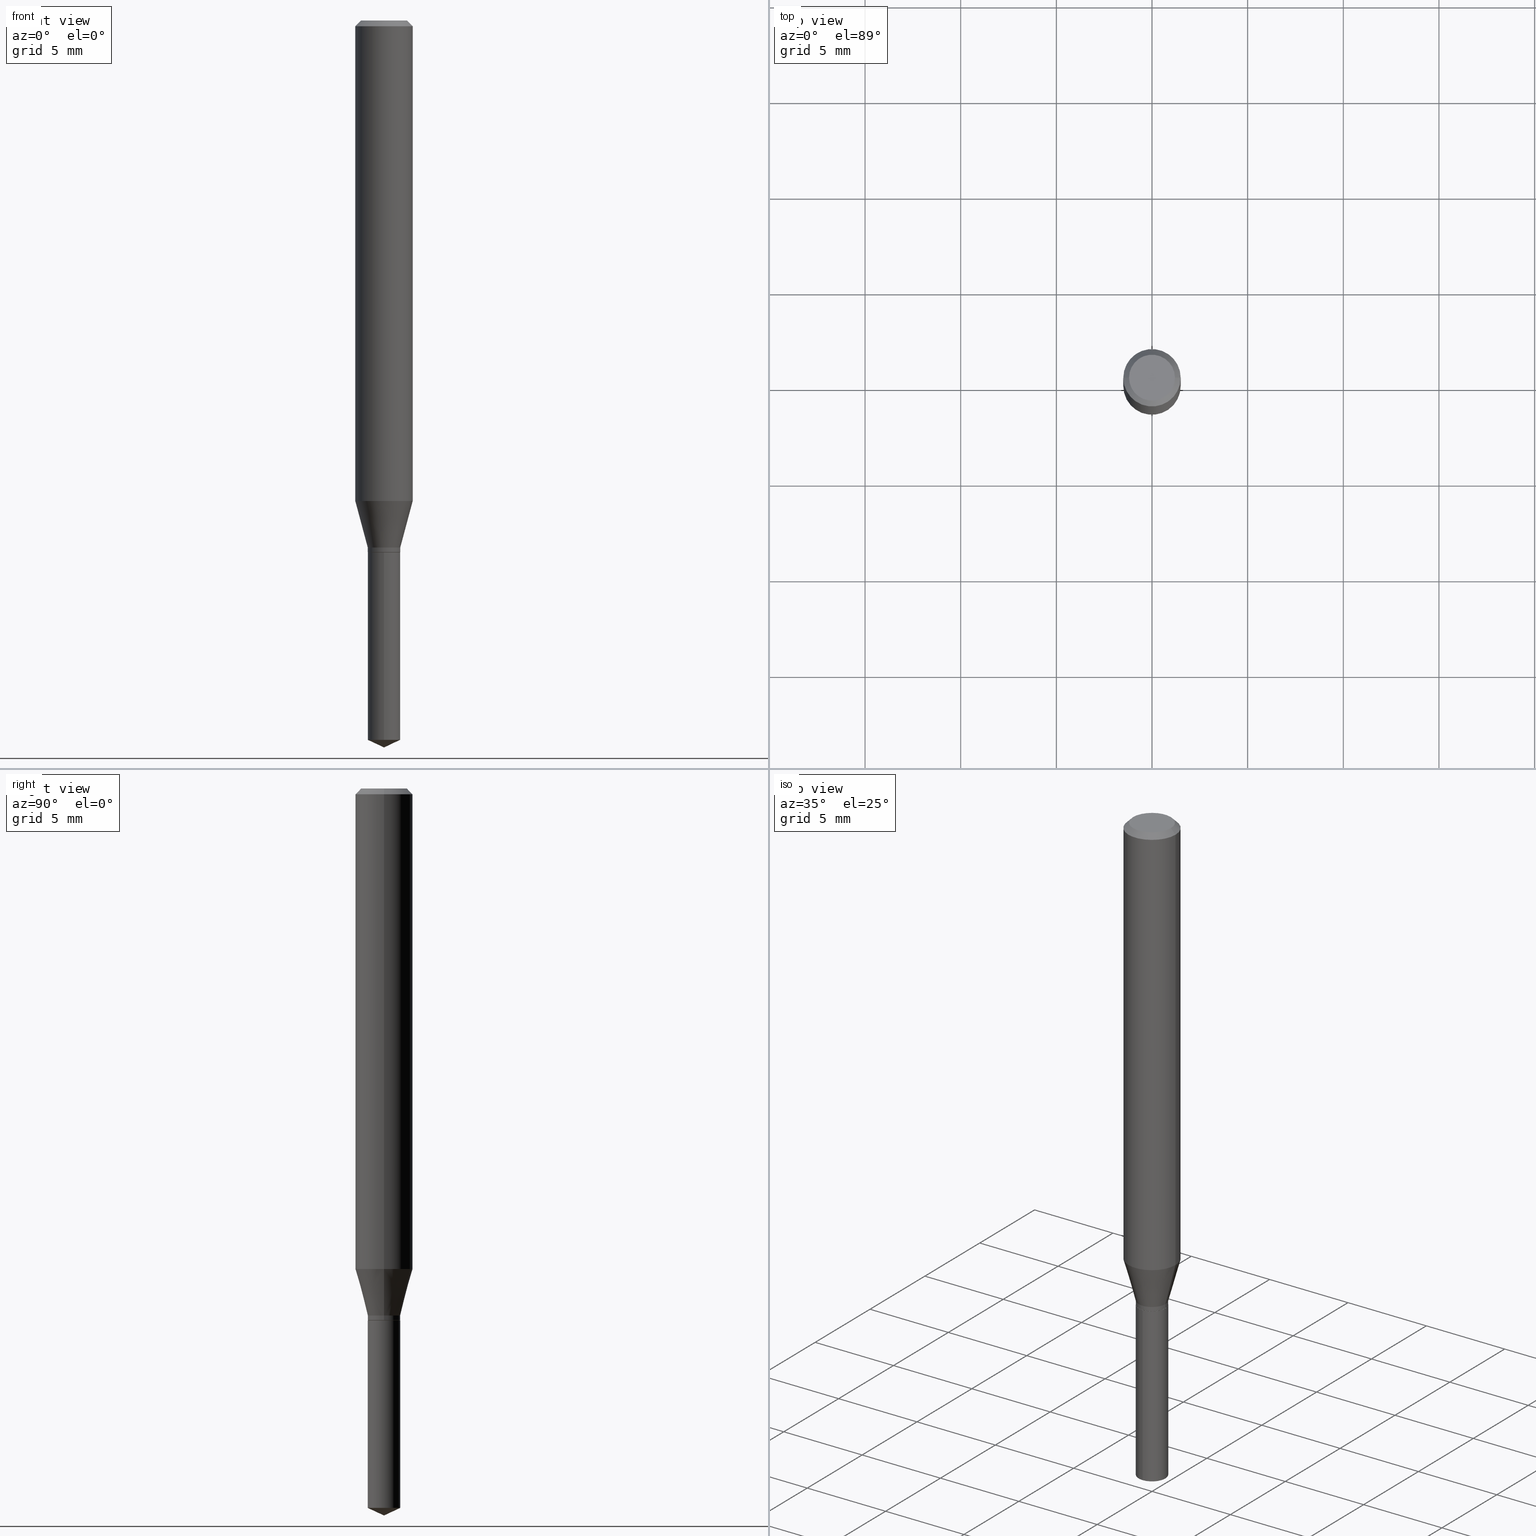
[diagram: canonical four-view strip — front | top / right | iso, engineering-drawing reading convention]
A machine part, canonical four-view strip (front | top / right | iso — engineering-drawing reading convention). The complete STEP part file that produces these views, byte-faithful:
ISO-10303-21;
HEADER;
FILE_DESCRIPTION (( 'STEP AP203' ),
    '1' );
FILE_NAME ('08357.STEP',
    '2024-04-24T14:34:04',
    ( '' ),
    ( '' ),
    'SwSTEP 2.0',
    'SolidWorks 2023',
    '' );
FILE_SCHEMA (( 'CONFIG_CONTROL_DESIGN' ));
ENDSEC;

DATA;
#1 = DIRECTION ( 'NONE',  ( -2.438088387897960049E-29, 3.491481338843145188E-15, 1.000000000000000000 ) ) ;
#2 = FACE_OUTER_BOUND ( 'NONE', #267, .T. ) ;
#3 = DIRECTION ( 'NONE',  ( -2.445468806185136597E-29, 3.491481338843145583E-15, 1.000000000000000000 ) ) ;
#4 = CYLINDRICAL_SURFACE ( 'NONE', #283, 0.03345000000000000057 ) ;
#5 = CIRCLE ( 'NONE', #49, 0.03345000000000000057 ) ;
#6 = AXIS2_PLACEMENT_3D ( 'NONE', #460, #214, #130 ) ;
#7 = CC_DESIGN_PERSON_AND_ORGANIZATION_ASSIGNMENT ( #146, #404, ( #382 ) ) ;
#8 = MANIFOLD_SOLID_BREP ( 'Body-Move/Copy2[2]', #353 ) ;
#9 = MANIFOLD_SOLID_BREP ( 'Body-Move/Copy2[1]', #282 ) ;
#10 = CARTESIAN_POINT ( 'NONE',  ( 0.03344999999999999363, -4.053260686263006336E-15, -1.093999999999999861 ) ) ;
#11 = AXIS2_PLACEMENT_3D ( 'NONE', #190, #410, #439 ) ;
#12 = CIRCLE ( 'NONE', #335, 0.03345000000000000057 ) ;
#13 = EDGE_LOOP ( 'NONE', ( #397, #368, #55, #86 ) ) ;
#14 = ORIENTED_EDGE ( 'NONE', *, *, #457, .F. ) ;
#15 = DIRECTION ( 'NONE',  ( -2.445468806185136597E-29, 3.491481338843145583E-15, 1.000000000000000000 ) ) ;
#16 = ORIENTED_EDGE ( 'NONE', *, *, #387, .T. ) ;
#17 = EDGE_CURVE ( 'NONE', #61, #360, #429, .T. ) ;
#18 = DIRECTION ( 'NONE',  ( -2.445468806185136597E-29, 3.491481338843145583E-15, 1.000000000000000000 ) ) ;
#19 = ORIENTED_EDGE ( 'NONE', *, *, #469, .F. ) ;
#20 = ADVANCED_FACE ( 'NONE', ( #182 ), #462, .T. ) ;
#21 = VECTOR ( 'NONE', #238, 39.37007874015748143 ) ;
#22 = CARTESIAN_POINT ( 'NONE',  ( 8.265746106709734507E-48, -1.180129479067563789E-33, -3.380025165646692144E-19 ) ) ;
#23 = AXIS2_PLACEMENT_3D ( 'NONE', #117, #413, #52 ) ;
#24 = CARTESIAN_POINT ( 'NONE',  ( 0.03344999999999998669, -4.020091613543996190E-15, -1.084499999999999797 ) ) ;
#25 = DIRECTION ( 'NONE',  ( -0.2588190451025213501, 5.211531920934551042E-15, 0.9659258262890682012 ) ) ;
#26 = DIRECTION ( 'NONE',  ( -2.445402730703145379E-29, 3.491575962694140016E-15, 1.000000000000000000 ) ) ;
#27 = CYLINDRICAL_SURFACE ( 'NONE', #152, 0.03345000000000000057 ) ;
#28 = FACE_OUTER_BOUND ( 'NONE', #227, .T. ) ;
#29 = ORIENTED_EDGE ( 'NONE', *, *, #318, .F. ) ;
#30 = COORDINATED_UNIVERSAL_TIME_OFFSET ( 5, 0, .BEHIND. ) ;
#31 = AXIS2_PLACEMENT_3D ( 'NONE', #48, #155, #294 ) ;
#32 = ORGANIZATION ( 'UNSPECIFIED', 'UNSPECIFIED', '' ) ;
#33 = ADVANCED_BREP_SHAPE_REPRESENTATION ( '08357', ( #9, #8, #362 ), #305 ) ;
#34 = ORIENTED_EDGE ( 'NONE', *, *, #154, .F. ) ;
#35 = PERSON_AND_ORGANIZATION_ROLE ( 'creator' ) ;
#36 = DIRECTION ( 'NONE',  ( 1.000000000000000000, -6.982962677686266711E-15, 0.000000000000000000 ) ) ;
#37 = CARTESIAN_POINT ( 'NONE',  ( 2.376765451117897545E-16, 0.03344999999999617724, -1.094500000000000028 ) ) ;
#38 = CYLINDRICAL_SURFACE ( 'NONE', #23, 0.05905000000000006077 ) ;
#39 = ORIENTED_EDGE ( 'NONE', *, *, #304, .T. ) ;
#40 = FACE_OUTER_BOUND ( 'NONE', #224, .T. ) ;
#41 = CARTESIAN_POINT ( 'NONE',  ( 2.676565608369632355E-29, -3.821426325363822773E-15, -1.094500000000000028 ) ) ;
#42 = CIRCLE ( 'NONE', #354, 0.03344999999999999363 ) ;
#43 = VERTEX_POINT ( 'NONE', #37 ) ;
#44 = PERSON_AND_ORGANIZATION ( #311, #32 ) ;
#45 = DIRECTION ( 'NONE',  ( -2.445468806185136597E-29, 3.491481338843145583E-15, 1.000000000000000000 ) ) ;
#46 = EDGE_CURVE ( 'NONE', #43, #424, #232, .T. ) ;
#47 = EDGE_CURVE ( 'NONE', #145, #426, #449, .T. ) ;
#48 = CARTESIAN_POINT ( 'NONE',  ( 2.888098660104664204E-31, -4.123439461173780263E-17, -0.01181000000000007218 ) ) ;
#49 = AXIS2_PLACEMENT_3D ( 'NONE', #412, #309, #208 ) ;
#50 = CONICAL_SURFACE ( 'NONE', #57, 0.03344999999999998669, 0.2617993877991500740 ) ;
#51 = ORIENTED_EDGE ( 'NONE', *, *, #333, .T. ) ;
#52 = DIRECTION ( 'NONE',  ( 1.000000000000000000, -6.982962677686266711E-15, 4.876176775795935793E-29 ) ) ;
#53 = LINE ( 'NONE', #207, #21 ) ;
#54 = CARTESIAN_POINT ( 'NONE',  ( 8.265746106709734507E-48, -1.180129479067563789E-33, -3.380025165646692144E-19 ) ) ;
#55 = ORIENTED_EDGE ( 'NONE', *, *, #154, .T. ) ;
#56 = CC_DESIGN_PERSON_AND_ORGANIZATION_ASSIGNMENT ( #446, #265, ( #68 ) ) ;
#57 = AXIS2_PLACEMENT_3D ( 'NONE', #150, #438, #247 ) ;
#58 = LOCAL_TIME ( 10, 34, 4.000000000000000000, #363 ) ;
#59 = VERTEX_POINT ( 'NONE', #125 ) ;
#60 = DIRECTION ( 'NONE',  ( -2.445402730703145379E-29, 3.491575962694140016E-15, 1.000000000000000000 ) ) ;
#61 = VERTEX_POINT ( 'NONE', #456 ) ;
#62 =( LENGTH_UNIT ( ) NAMED_UNIT ( * ) SI_UNIT ( $, .METRE. ) );
#63 = ORIENTED_EDGE ( 'NONE', *, *, #47, .T. ) ;
#64 = AXIS2_PLACEMENT_3D ( 'NONE', #169, #348, #422 ) ;
#65 = CARTESIAN_POINT ( 'NONE',  ( 0.000000000000000000, 0.000000000000000000, 0.000000000000000000 ) ) ;
#66 =( CONVERSION_BASED_UNIT ( 'INCH', #133 ) LENGTH_UNIT ( ) NAMED_UNIT ( #388 ) );
#67 = EDGE_CURVE ( 'NONE', #378, #59, #289, .T. ) ;
#68 = PRODUCT ( '08357', '08357', '', ( #482 ) ) ;
#69 = DIRECTION ( 'NONE',  ( 1.000000000000000000, -6.982962677686265922E-15, 0.000000000000000000 ) ) ;
#70 = DIRECTION ( 'NONE',  ( 1.000000000000000000, -6.982962677686266711E-15, 4.876185090822587894E-29 ) ) ;
#71 = ORIENTED_EDGE ( 'NONE', *, *, #47, .F. ) ;
#72 = AXIS2_PLACEMENT_3D ( 'NONE', #222, #191, #161 ) ;
#73 = COORDINATED_UNIVERSAL_TIME_OFFSET ( 5, 0, .BEHIND. ) ;
#74 = VECTOR ( 'NONE', #365, 39.37007874015748143 ) ;
#75 = DIRECTION ( 'NONE',  ( -2.445468806185136597E-29, 3.491481338843145583E-15, 1.000000000000000000 ) ) ;
#76 = DIRECTION ( 'NONE',  ( -6.982962677686266711E-15, -1.000000000000000000, 3.520397390770359207E-15 ) ) ;
#77 = EDGE_LOOP ( 'NONE', ( #29, #177, #419 ) ) ;
#78 = PERSON_AND_ORGANIZATION ( #311, #32 ) ;
#79 = APPROVAL ( #225, 'UNSPECIFIED' ) ;
#80 = EDGE_LOOP ( 'NONE', ( #328, #82, #149, #19 ) ) ;
#81 = DATE_TIME_ROLE ( 'creation_date' ) ;
#82 = ORIENTED_EDGE ( 'NONE', *, *, #393, .T. ) ;
#83 = EDGE_CURVE ( 'NONE', #61, #451, #476, .T. ) ;
#84 = AXIS2_PLACEMENT_3D ( 'NONE', #284, #15, #470 ) ;
#85 = CC_DESIGN_APPROVAL ( #79, ( #358 ) ) ;
#86 = ORIENTED_EDGE ( 'NONE', *, *, #447, .F. ) ;
#87 = EDGE_CURVE ( 'NONE', #481, #102, #5, .T. ) ;
#88 = CARTESIAN_POINT ( 'NONE',  ( -2.335801015685788365E-16, -0.03345000000000382390, -1.094499999999999806 ) ) ;
#89 = DIRECTION ( 'NONE',  ( -0.7071067811865453523, 2.468850131082234184E-15, -0.7071067811865496822 ) ) ;
#90 = AXIS2_PLACEMENT_3D ( 'NONE', #427, #175, #423 ) ;
#91 = FACE_OUTER_BOUND ( 'NONE', #345, .T. ) ;
#92 = ADVANCED_FACE ( 'NONE', ( #209 ), #371, .T. ) ;
#93 = DIRECTION ( 'NONE',  ( -2.445468806185136597E-29, 3.491481338843145583E-15, 1.000000000000000000 ) ) ;
#94 = DIRECTION ( 'NONE',  ( -1.000000000000000000, 6.982962677686265922E-15, -4.876176775795935793E-29 ) ) ;
#95 = ORIENTED_EDGE ( 'NONE', *, *, #83, .T. ) ;
#96 = AXIS2_PLACEMENT_3D ( 'NONE', #453, #445, #94 ) ;
#97 = LOCAL_TIME ( 10, 34, 4.000000000000000000, #109 ) ;
#98 = CC_DESIGN_DATE_AND_TIME_ASSIGNMENT ( #403, #81, ( #358 ) ) ;
#99 = CARTESIAN_POINT ( 'NONE',  ( -2.335801015685788365E-16, -0.03345000000000382390, -1.094499999999999806 ) ) ;
#100 = EDGE_LOOP ( 'NONE', ( #210, #200 ) ) ;
#101 = CARTESIAN_POINT ( 'NONE',  ( 2.676565608369631794E-29, -3.821426325363822773E-15, -1.094499999999999806 ) ) ;
#102 = VERTEX_POINT ( 'NONE', #121 ) ;
#103 = DIRECTION ( 'NONE',  ( 2.445468806185136597E-29, -3.491481338843145583E-15, -1.000000000000000000 ) ) ;
#104 = FACE_OUTER_BOUND ( 'NONE', #110, .T. ) ;
#105 = ADVANCED_FACE ( 'NONE', ( #377 ), #373, .T. ) ;
#106 = CARTESIAN_POINT ( 'NONE',  ( 2.676565608369632355E-29, -3.821426325363822773E-15, -1.094500000000000028 ) ) ;
#107 = DIRECTION ( 'NONE',  ( 0.000000000000000000, 0.000000000000000000, 1.000000000000000000 ) ) ;
#108 = ORIENTED_EDGE ( 'NONE', *, *, #17, .T. ) ;
#109 = COORDINATED_UNIVERSAL_TIME_OFFSET ( 5, 0, .BEHIND. ) ;
#110 = EDGE_LOOP ( 'NONE', ( #279, #108, #434, #448 ) ) ;
#111 = CIRCLE ( 'NONE', #440, 0.03295000000000000012 ) ;
#112 = DIRECTION ( 'NONE',  ( -2.445402730703145379E-29, 3.491575962694140016E-15, 1.000000000000000000 ) ) ;
#113 = VECTOR ( 'NONE', #276, 39.37007874015748143 ) ;
#114 = EDGE_CURVE ( 'NONE', #378, #336, #235, .T. ) ;
#115 = CARTESIAN_POINT ( 'NONE',  ( 2.888098660104664204E-31, -4.123439461173780263E-17, -0.01181000000000007218 ) ) ;
#116 = PERSON_AND_ORGANIZATION_ROLE ( 'classification_officer' ) ;
#117 = CARTESIAN_POINT ( 'NONE',  ( 0.000000000000000000, 0.000000000000000000, 0.000000000000000000 ) ) ;
#118 = EDGE_CURVE ( 'NONE', #451, #241, #160, .T. ) ;
#119 = ORIENTED_EDGE ( 'NONE', *, *, #411, .T. ) ;
#120 = VECTOR ( 'NONE', #89, 39.37007874015748143 ) ;
#121 = CARTESIAN_POINT ( 'NONE',  ( 2.376765451117897052E-16, 0.03344999999999482415, -1.480502008834715610 ) ) ;
#122 = LOCAL_TIME ( 10, 34, 4.000000000000000000, #73 ) ;
#123 = ORIENTED_EDGE ( 'NONE', *, *, #221, .F. ) ;
#124 = DIRECTION ( 'NONE',  ( -2.445402730703145379E-29, 3.491575962694140016E-15, 1.000000000000000000 ) ) ;
#125 = CARTESIAN_POINT ( 'NONE',  ( -0.03344999999999998669, -3.565419503223141645E-15, -1.084499999999999797 ) ) ;
#126 = DIRECTION ( 'NONE',  ( -2.445402730703145379E-29, 3.491575962694140016E-15, 1.000000000000000000 ) ) ;
#127 = DIRECTION ( 'NONE',  ( -6.982962677686264344E-15, -1.000000000000000000, 4.083479811157344024E-15 ) ) ;
#128 = DIRECTION ( 'NONE',  ( 1.000000000000000000, -6.982962677686265922E-15, 4.876176775795935793E-29 ) ) ;
#129 = CONICAL_SURFACE ( 'NONE', #390, 0.05904999999999999832, 0.7853981633974452814 ) ;
#130 = DIRECTION ( 'NONE',  ( 1.000000000000000000, -6.982962677686266711E-15, 0.000000000000000000 ) ) ;
#131 = EDGE_CURVE ( 'NONE', #137, #285, #111, .T. ) ;
#132 = EDGE_LOOP ( 'NONE', ( #14, #256, #271, #123 ) ) ;
#133 = LENGTH_MEASURE_WITH_UNIT ( LENGTH_MEASURE( 0.02539999999999999897 ), #62 );
#134 = CIRCLE ( 'NONE', #6, 0.05905000000000011628 ) ;
#135 = DIRECTION ( 'NONE',  ( 6.439704144417061119E-15, 0.9063077870366564870, 0.4226182617406853970 ) ) ;
#136 = FACE_OUTER_BOUND ( 'NONE', #170, .T. ) ;
#137 = VERTEX_POINT ( 'NONE', #236 ) ;
#138 = EDGE_LOOP ( 'NONE', ( #277, #51, #147, #366 ) ) ;
#139 = ADVANCED_FACE ( 'NONE', ( #91 ), #4, .T. ) ;
#140 = DIRECTION ( 'NONE',  ( -2.445402730703145379E-29, 3.491575962694140016E-15, 1.000000000000000000 ) ) ;
#141 = EDGE_CURVE ( 'NONE', #426, #59, #53, .T. ) ;
#142 = VECTOR ( 'NONE', #359, 39.37007874015748143 ) ;
#143 = FACE_OUTER_BOUND ( 'NONE', #132, .T. ) ;
#144 =( NAMED_UNIT ( * ) PLANE_ANGLE_UNIT ( ) SI_UNIT ( $, .RADIAN. ) );
#145 = VERTEX_POINT ( 'NONE', #10 ) ;
#146 = PERSON_AND_ORGANIZATION ( #311, #32 ) ;
#147 = ORIENTED_EDGE ( 'NONE', *, *, #485, .T. ) ;
#148 = APPROVAL_DATE_TIME ( #484, #79 ) ;
#149 = ORIENTED_EDGE ( 'NONE', *, *, #299, .F. ) ;
#150 = CARTESIAN_POINT ( 'NONE',  ( 2.652110920307780249E-29, -3.786511511975391124E-15, -1.084499999999999797 ) ) ;
#151 = APPROVAL_STATUS ( 'not_yet_approved' ) ;
#152 = AXIS2_PLACEMENT_3D ( 'NONE', #188, #112, #262 ) ;
#153 = DIRECTION ( 'NONE',  ( 1.000000000000000000, -6.982962677686265922E-15, 4.876176775795935793E-29 ) ) ;
#154 = EDGE_CURVE ( 'NONE', #145, #378, #164, .T. ) ;
#155 = DIRECTION ( 'NONE',  ( -2.445468806185136597E-29, 3.491481338843145583E-15, 1.000000000000000000 ) ) ;
#156 = ORIENTED_EDGE ( 'NONE', *, *, #46, .T. ) ;
#157 = PERSON_AND_ORGANIZATION_ROLE ( 'design_supplier' ) ;
#158 = CARTESIAN_POINT ( 'NONE',  ( 0.000000000000000000, 0.000000000000000000, 0.000000000000000000 ) ) ;
#159 = DIRECTION ( 'NONE',  ( -2.445468806185136597E-29, 3.491481338843145583E-15, 1.000000000000000000 ) ) ;
#160 = LINE ( 'NONE', #203, #120 ) ;
#161 = DIRECTION ( 'NONE',  ( 1.000000000000000000, -6.982962677686267499E-15, 0.000000000000000000 ) ) ;
#162 = EDGE_CURVE ( 'NONE', #426, #145, #42, .T. ) ;
#163 = CARTESIAN_POINT ( 'NONE',  ( 0.03344999999999998669, -4.020091613543996190E-15, -1.084499999999999797 ) ) ;
#164 = LINE ( 'NONE', #312, #113 ) ;
#165 = AXIS2_PLACEMENT_3D ( 'NONE', #331, #140, #76 ) ;
#166 = VECTOR ( 'NONE', #26, 39.37007874015748143 ) ;
#167 = EDGE_LOOP ( 'NONE', ( #286, #297, #302 ) ) ;
#168 = ORIENTED_EDGE ( 'NONE', *, *, #376, .T. ) ;
#169 = CARTESIAN_POINT ( 'NONE',  ( 3.620495974830945806E-29, -5.169181660962767472E-15, -1.480502008834715610 ) ) ;
#170 = EDGE_LOOP ( 'NONE', ( #63, #430, #244, #34 ) ) ;
#171 = CARTESIAN_POINT ( 'NONE',  ( 3.658712932950369103E-29, -5.223539666176875291E-15, -1.496099999999999985 ) ) ;
#172 = LINE ( 'NONE', #181, #273 ) ;
#173 = AXIS2_PLACEMENT_3D ( 'NONE', #270, #414, #274 ) ;
#174 = AXIS2_PLACEMENT_3D ( 'NONE', #349, #1, #153 ) ;
#175 = DIRECTION ( 'NONE',  ( -2.445468806185136597E-29, 3.491481338843145583E-15, 1.000000000000000000 ) ) ;
#176 = ADVANCED_FACE ( 'NONE', ( #468 ), #400, .T. ) ;
#177 = ORIENTED_EDGE ( 'NONE', *, *, #240, .T. ) ;
#178 = CYLINDRICAL_SURFACE ( 'NONE', #421, 0.05905000000000006077 ) ;
#179 = DIRECTION ( 'NONE',  ( -2.445468806185136877E-29, 3.491481338843145188E-15, 1.000000000000000000 ) ) ;
#180 = FACE_OUTER_BOUND ( 'NONE', #420, .T. ) ;
#181 = CARTESIAN_POINT ( 'NONE',  ( -0.05905000000000006077, 4.195754854663395916E-16, -2.904631170795524694E-30 ) ) ;
#182 = FACE_OUTER_BOUND ( 'NONE', #77, .T. ) ;
#183 = ORIENTED_EDGE ( 'NONE', *, *, #478, .F. ) ;
#184 = CIRCLE ( 'NONE', #64, 0.03345000000000000057 ) ;
#185 = DIRECTION ( 'NONE',  ( -6.982962677686266711E-15, -1.000000000000000000, 3.520397390770359207E-15 ) ) ;
#186 = APPROVAL_ROLE ( '' ) ;
#187 = EDGE_CURVE ( 'NONE', #285, #426, #193, .T. ) ;
#188 = CARTESIAN_POINT ( 'NONE',  ( 2.676565608369631794E-29, -3.821426325363822773E-15, -1.094499999999999806 ) ) ;
#189 = SECURITY_CLASSIFICATION_LEVEL ( 'unclassified' ) ;
#190 = CARTESIAN_POINT ( 'NONE',  ( 2.676565608369631794E-29, -3.821426325363822773E-15, -1.094499999999999806 ) ) ;
#191 = DIRECTION ( 'NONE',  ( -2.445468806185136597E-29, 3.491481338843145583E-15, 1.000000000000000000 ) ) ;
#192 = ORIENTED_EDGE ( 'NONE', *, *, #87, .T. ) ;
#193 = LINE ( 'NONE', #295, #213 ) ;
#194 = PERSON_AND_ORGANIZATION ( #311, #32 ) ;
#195 = EDGE_LOOP ( 'NONE', ( #479, #386, #183, #338 ) ) ;
#196 = APPROVAL_ROLE ( '' ) ;
#197 = CIRCLE ( 'NONE', #455, 0.03344999999999998669 ) ;
#198 = DIRECTION ( 'NONE',  ( -2.445468806185136597E-29, 3.491481338843145583E-15, 1.000000000000000000 ) ) ;
#199 = LOCAL_TIME ( 10, 34, 4.000000000000000000, #480 ) ;
#200 = ORIENTED_EDGE ( 'NONE', *, *, #333, .F. ) ;
#201 = APPROVAL_ROLE ( '' ) ;
#202 = ADVANCED_FACE ( 'NONE', ( #143 ), #50, .T. ) ;
#203 = CARTESIAN_POINT ( 'NONE',  ( -0.05904999999999999832, 3.711095515056362547E-16, -0.01181000000000007218 ) ) ;
#204 = ADVANCED_FACE ( 'NONE', ( #180 ), #27, .T. ) ;
#205 = AXIS2_PLACEMENT_3D ( 'NONE', #486, #198, #327 ) ;
#206 = APPROVAL_PERSON_ORGANIZATION ( #361, #435, #196 ) ;
#207 = CARTESIAN_POINT ( 'NONE',  ( -0.03344999999999999363, 2.376765451117534669E-16, -1.645383787690265578E-30 ) ) ;
#208 = DIRECTION ( 'NONE',  ( -6.982962677686264344E-15, -1.000000000000000000, 0.000000000000000000 ) ) ;
#209 = FACE_OUTER_BOUND ( 'NONE', #13, .T. ) ;
#210 = ORIENTED_EDGE ( 'NONE', *, *, #131, .F. ) ;
#211 = UNCERTAINTY_MEASURE_WITH_UNIT (LENGTH_MEASURE( 1.000000000000000082E-05 ), #66, 'distance_accuracy_value', 'NONE');
#212 = ADVANCED_FACE ( 'NONE', ( #474 ), #178, .T. ) ;
#213 = VECTOR ( 'NONE', #218, 39.37007874015748143 ) ;
#214 = DIRECTION ( 'NONE',  ( -2.445468806185136597E-29, 3.491481338843145583E-15, 1.000000000000000000 ) ) ;
#215 = DIRECTION ( 'NONE',  ( -6.982962677686264344E-15, -1.000000000000000000, 4.083479811157344024E-15 ) ) ;
#216 = AXIS2_PLACEMENT_3D ( 'NONE', #106, #252, #330 ) ;
#217 = CC_DESIGN_PERSON_AND_ORGANIZATION_ASSIGNMENT ( #44, #116, ( #417 ) ) ;
#218 = DIRECTION ( 'NONE',  ( -0.7071067811864237829, 7.493145998869907665E-15, 0.7071067811866712516 ) ) ;
#219 = CARTESIAN_POINT ( 'NONE',  ( -0.04724000000000000421, 3.504923541997677355E-16, -3.380025165670481712E-19 ) ) ;
#220 = DIRECTION ( 'NONE',  ( -2.445468806185136597E-29, 3.491481338843145583E-15, 1.000000000000000000 ) ) ;
#221 = EDGE_CURVE ( 'NONE', #292, #336, #134, .T. ) ;
#222 = CARTESIAN_POINT ( 'NONE',  ( 2.652110920307780249E-29, -3.786511511975391124E-15, -1.084499999999999797 ) ) ;
#223 = VECTOR ( 'NONE', #391, 39.37007874015748143 ) ;
#224 = EDGE_LOOP ( 'NONE', ( #406, #364, #71, #288 ) ) ;
#225 = APPROVAL_STATUS ( 'not_yet_approved' ) ;
#226 = APPLICATION_CONTEXT ( 'configuration controlled 3d designs of mechanical parts and assemblies' ) ;
#227 = EDGE_LOOP ( 'NONE', ( #344, #156 ) ) ;
#228 = SHAPE_DEFINITION_REPRESENTATION ( #332, #33 ) ;
#229 = LINE ( 'NONE', #436, #74 ) ;
#230 = PERSON_AND_ORGANIZATION ( #311, #32 ) ;
#231 = ORIENTED_EDGE ( 'NONE', *, *, #118, .T. ) ;
#232 = CIRCLE ( 'NONE', #11, 0.03345000000000000057 ) ;
#233 = CALENDAR_DATE ( 2024, 24, 4 ) ;
#234 = CIRCLE ( 'NONE', #487, 0.04724000000000000421 ) ;
#235 = LINE ( 'NONE', #163, #325 ) ;
#236 = CARTESIAN_POINT ( 'NONE',  ( 0.03295000000000000012, -4.051514945593585621E-15, -1.094500000000000028 ) ) ;
#237 = CC_DESIGN_SECURITY_CLASSIFICATION ( #417, ( #382 ) ) ;
#238 = DIRECTION ( 'NONE',  ( -2.445468806185136877E-29, 3.491481338843145188E-15, 1.000000000000000000 ) ) ;
#239 = ORIENTED_EDGE ( 'NONE', *, *, #393, .F. ) ;
#240 = EDGE_CURVE ( 'NONE', #355, #102, #280, .T. ) ;
#241 = VERTEX_POINT ( 'NONE', #310 ) ;
#242 = PLANE ( 'NONE',  #174 ) ;
#243 = DIRECTION ( 'NONE',  ( -1.000000000000000000, 6.982962677686266711E-15, 0.000000000000000000 ) ) ;
#244 = ORIENTED_EDGE ( 'NONE', *, *, #67, .F. ) ;
#245 = LINE ( 'NONE', #324, #142 ) ;
#246 = ADVANCED_FACE ( 'NONE', ( #350 ), #260, .T. ) ;
#247 = DIRECTION ( 'NONE',  ( 1.000000000000000000, -6.982962677686267499E-15, 0.000000000000000000 ) ) ;
#248 = LINE ( 'NONE', #357, #450 ) ;
#249 = CARTESIAN_POINT ( 'NONE',  ( 0.05904999999999999832, -4.463468013801466955E-16, -0.01181000000000007218 ) ) ;
#250 = VECTOR ( 'NONE', #179, 39.37007874015748143 ) ;
#251 = CARTESIAN_POINT ( 'NONE',  ( 2.418469606182781541E-29, -3.452933636769214658E-15, -0.9889594993262362799 ) ) ;
#252 = DIRECTION ( 'NONE',  ( -2.445468806185136597E-29, 3.491481338843145583E-15, 1.000000000000000000 ) ) ;
#253 = EDGE_CURVE ( 'NONE', #102, #43, #385, .T. ) ;
#254 = DIRECTION ( 'NONE',  ( 1.000000000000000000, 0.000000000000000000, 0.000000000000000000 ) ) ;
#255 = APPLICATION_CONTEXT ( 'configuration controlled 3d designs of mechanical parts and assemblies' ) ;
#256 = ORIENTED_EDGE ( 'NONE', *, *, #447, .T. ) ;
#257 = APPLICATION_PROTOCOL_DEFINITION ( 'international standard', 'config_control_design', 1994, #255 ) ;
#258 = AXIS2_PLACEMENT_3D ( 'NONE', #408, #433, #69 ) ;
#259 = FACE_OUTER_BOUND ( 'NONE', #80, .T. ) ;
#260 = CONICAL_SURFACE ( 'NONE', #90, 0.03344999999999998669, 0.2617993877991500740 ) ;
#261 = EDGE_LOOP ( 'NONE', ( #239, #314, #316, #437 ) ) ;
#262 = DIRECTION ( 'NONE',  ( -6.982962677686264344E-15, -1.000000000000000000, 4.083479811157344024E-15 ) ) ;
#263 = ORIENTED_EDGE ( 'NONE', *, *, #376, .F. ) ;
#264 = DATE_TIME_ROLE ( 'classification_date' ) ;
#265 = PERSON_AND_ORGANIZATION_ROLE ( 'design_owner' ) ;
#266 = DIRECTION ( 'NONE',  ( 1.000000000000000000, -6.982962677686264344E-15, 0.000000000000000000 ) ) ;
#267 = EDGE_LOOP ( 'NONE', ( #16, #95 ) ) ;
#268 = AXIS2_PLACEMENT_3D ( 'NONE', #54, #159, #307 ) ;
#269 = AXIS2_PLACEMENT_3D ( 'NONE', #251, #220, #319 ) ;
#270 = CARTESIAN_POINT ( 'NONE',  ( 2.888098660104664204E-31, -4.123439461173780263E-17, -0.01181000000000007218 ) ) ;
#271 = ORIENTED_EDGE ( 'NONE', *, *, #114, .T. ) ;
#272 = ADVANCED_FACE ( 'NONE', ( #2 ), #409, .F. ) ;
#273 = VECTOR ( 'NONE', #428, 39.37007874015748143 ) ;
#274 = DIRECTION ( 'NONE',  ( -1.000000000000000000, 6.982962677686266711E-15, 0.000000000000000000 ) ) ;
#275 = ORIENTED_EDGE ( 'NONE', *, *, #46, .F. ) ;
#276 = DIRECTION ( 'NONE',  ( -2.445468806185136877E-29, 3.491481338843145188E-15, 1.000000000000000000 ) ) ;
#277 = ORIENTED_EDGE ( 'NONE', *, *, #187, .F. ) ;
#278 = CC_DESIGN_PERSON_AND_ORGANIZATION_ASSIGNMENT ( #78, #35, ( #358 ) ) ;
#279 = ORIENTED_EDGE ( 'NONE', *, *, #83, .F. ) ;
#280 = LINE ( 'NONE', #171, #463 ) ;
#281 = CARTESIAN_POINT ( 'NONE',  ( 0.000000000000000000, 0.000000000000000000, 0.000000000000000000 ) ) ;
#282 = CLOSED_SHELL ( 'NONE', ( #139, #20, #176, #204, #490 ) ) ;
#283 = AXIS2_PLACEMENT_3D ( 'NONE', #375, #126, #127 ) ;
#284 = CARTESIAN_POINT ( 'NONE',  ( 0.000000000000000000, 0.000000000000000000, 0.000000000000000000 ) ) ;
#285 = VERTEX_POINT ( 'NONE', #342 ) ;
#286 = ORIENTED_EDGE ( 'NONE', *, *, #240, .F. ) ;
#287 = CARTESIAN_POINT ( 'NONE',  ( 2.652110920307780249E-29, -3.786511511975391124E-15, -1.084499999999999797 ) ) ;
#288 = ORIENTED_EDGE ( 'NONE', *, *, #485, .F. ) ;
#289 = CIRCLE ( 'NONE', #72, 0.03344999999999998669 ) ;
#290 = ADVANCED_FACE ( 'NONE', ( #308 ), #242, .F. ) ;
#291 = CARTESIAN_POINT ( 'NONE',  ( 0.05905000000000006077, -4.123439461173744764E-16, 2.879382386107503023E-30 ) ) ;
#292 = VERTEX_POINT ( 'NONE', #442 ) ;
#293 = DATE_AND_TIME ( #396, #199 ) ;
#294 = DIRECTION ( 'NONE',  ( 1.000000000000000000, -6.982962677686266711E-15, 0.000000000000000000 ) ) ;
#295 = CARTESIAN_POINT ( 'NONE',  ( -0.03295000000000000012, -3.587302493930870304E-15, -1.094500000000000028 ) ) ;
#296 = CONICAL_SURFACE ( 'NONE', #216, 0.03295000000000000012, 0.7853981633972733079 ) ;
#297 = ORIENTED_EDGE ( 'NONE', *, *, #318, .T. ) ;
#298 = DATE_AND_TIME ( #329, #58 ) ;
#299 = EDGE_CURVE ( 'NONE', #360, #241, #321, .T. ) ;
#300 = ORIENTED_EDGE ( 'NONE', *, *, #17, .F. ) ;
#301 = APPROVAL_STATUS ( 'not_yet_approved' ) ;
#302 = ORIENTED_EDGE ( 'NONE', *, *, #411, .F. ) ;
#303 = DATE_AND_TIME ( #233, #122 ) ;
#304 = EDGE_CURVE ( 'NONE', #241, #360, #405, .T. ) ;
#305 =( GEOMETRIC_REPRESENTATION_CONTEXT ( 3 ) GLOBAL_UNCERTAINTY_ASSIGNED_CONTEXT ( ( #211 ) ) GLOBAL_UNIT_ASSIGNED_CONTEXT ( ( #66, #144, #323 ) ) REPRESENTATION_CONTEXT ( 'NONE', 'WORKASPACE' ) );
#306 = DIRECTION ( 'NONE',  ( 1.000000000000000000, -6.982962677686264344E-15, 0.000000000000000000 ) ) ;
#307 = DIRECTION ( 'NONE',  ( 1.000000000000000000, -6.982962677686266711E-15, 4.876185090822587894E-29 ) ) ;
#308 = FACE_OUTER_BOUND ( 'NONE', #100, .T. ) ;
#309 = DIRECTION ( 'NONE',  ( -2.445402730703145379E-29, 3.491575962694140016E-15, 1.000000000000000000 ) ) ;
#310 = CARTESIAN_POINT ( 'NONE',  ( -0.05904999999999999832, -1.327508530224135714E-15, -0.01181000000000007218 ) ) ;
#311 = PERSON ( 'UNSPECIFIED', 'UNSPECIFIED', 'UNSPECIFIED', ('UNSPECIFIED'), ('UNSPECIFIED'), ('UNSPECIFIED') ) ;
#312 = CARTESIAN_POINT ( 'NONE',  ( 0.03344999999999999363, -2.335801015686055591E-16, 1.631081131503740178E-30 ) ) ;
#313 = ADVANCED_FACE ( 'NONE', ( #40 ), #432, .T. ) ;
#314 = ORIENTED_EDGE ( 'NONE', *, *, #221, .T. ) ;
#315 = DIRECTION ( 'NONE',  ( 6.982962677686265922E-15, 1.000000000000000000, -3.491575962694140016E-15 ) ) ;
#316 = ORIENTED_EDGE ( 'NONE', *, *, #469, .T. ) ;
#317 = CARTESIAN_POINT ( 'NONE',  ( 0.05905000000000011628, -3.865277582886589578E-15, -0.9889594993262362799 ) ) ;
#318 = EDGE_CURVE ( 'NONE', #355, #481, #229, .T. ) ;
#319 = DIRECTION ( 'NONE',  ( 1.000000000000000000, -6.982962677686266711E-15, 0.000000000000000000 ) ) ;
#320 = AXIS2_PLACEMENT_3D ( 'NONE', #158, #3, #128 ) ;
#321 = CIRCLE ( 'NONE', #31, 0.05904999999999999832 ) ;
#322 = ORIENTED_EDGE ( 'NONE', *, *, #415, .F. ) ;
#323 =( NAMED_UNIT ( * ) SI_UNIT ( $, .STERADIAN. ) SOLID_ANGLE_UNIT ( ) );
#324 = CARTESIAN_POINT ( 'NONE',  ( 0.03295000000000000012, -4.051514945593585621E-15, -1.094500000000000028 ) ) ;
#325 = VECTOR ( 'NONE', #452, 39.37007874015747433 ) ;
#326 = AXIS2_PLACEMENT_3D ( 'NONE', #101, #461, #315 ) ;
#327 = DIRECTION ( 'NONE',  ( 1.000000000000000000, -6.982962677686264344E-15, 0.000000000000000000 ) ) ;
#328 = ORIENTED_EDGE ( 'NONE', *, *, #478, .T. ) ;
#329 = CALENDAR_DATE ( 2024, 24, 4 ) ;
#330 = DIRECTION ( 'NONE',  ( 1.000000000000000000, -6.982962677686264344E-15, 0.000000000000000000 ) ) ;
#331 = CARTESIAN_POINT ( 'NONE',  ( -9.261705871415894043E-28, 1.322399773465276608E-13, 37.87397874015748300 ) ) ;
#332 = PRODUCT_DEFINITION_SHAPE ( 'NONE', 'NONE',  #358 ) ;
#333 = EDGE_CURVE ( 'NONE', #285, #137, #340, .T. ) ;
#334 = CALENDAR_DATE ( 2024, 24, 4 ) ;
#335 = AXIS2_PLACEMENT_3D ( 'NONE', #384, #60, #215 ) ;
#336 = VERTEX_POINT ( 'NONE', #317 ) ;
#337 = DIRECTION ( 'NONE',  ( -2.445468806185136597E-29, 3.491481338843145583E-15, 1.000000000000000000 ) ) ;
#338 = ORIENTED_EDGE ( 'NONE', *, *, #114, .F. ) ;
#339 = DIRECTION ( 'NONE',  ( -2.445468806185136597E-29, 3.491481338843145583E-15, 1.000000000000000000 ) ) ;
#340 = CIRCLE ( 'NONE', #205, 0.03295000000000000012 ) ;
#341 = APPROVAL_PERSON_ORGANIZATION ( #194, #79, #186 ) ;
#342 = CARTESIAN_POINT ( 'NONE',  ( -0.03295000000000000012, -3.584653266756758314E-15, -1.094500000000000028 ) ) ;
#343 = CIRCLE ( 'NONE', #269, 0.05905000000000011628 ) ;
#344 = ORIENTED_EDGE ( 'NONE', *, *, #415, .T. ) ;
#345 = EDGE_LOOP ( 'NONE', ( #192, #458, #322, #263 ) ) ;
#346 = ORIENTED_EDGE ( 'NONE', *, *, #387, .F. ) ;
#347 = PRODUCT_RELATED_PRODUCT_CATEGORY ( 'detail', '', ( #68 ) ) ;
#348 = DIRECTION ( 'NONE',  ( -2.445402730703145379E-29, 3.491575962694140016E-15, 1.000000000000000000 ) ) ;
#349 = CARTESIAN_POINT ( 'NONE',  ( -4.917366192118304542E-30, -8.358615443824423070E-15, -1.094500000000000028 ) ) ;
#350 = FACE_OUTER_BOUND ( 'NONE', #195, .T. ) ;
#351 = CARTESIAN_POINT ( 'NONE',  ( 3.658567025404975087E-29, -5.223746797786701947E-15, -1.496099999999999985 ) ) ;
#352 = LINE ( 'NONE', #291, #250 ) ;
#353 = CLOSED_SHELL ( 'NONE', ( #313, #444, #367, #246, #473, #92, #202, #212, #105, #272, #290, #380 ) ) ;
#354 = AXIS2_PLACEMENT_3D ( 'NONE', #418, #93, #383 ) ;
#355 = VERTEX_POINT ( 'NONE', #351 ) ;
#356 = DIRECTION ( 'NONE',  ( 1.000000000000000000, -6.982962677686266711E-15, 4.876176775795935793E-29 ) ) ;
#357 = CARTESIAN_POINT ( 'NONE',  ( -0.03344999999999998669, -3.548834966863637756E-15, -1.084499999999999797 ) ) ;
#358 = PRODUCT_DEFINITION ( 'UNKNOWN', '', #382, #471 ) ;
#359 = DIRECTION ( 'NONE',  ( 0.7071067811864237829, -2.468850131080960568E-15, 0.7071067811866712516 ) ) ;
#360 = VERTEX_POINT ( 'NONE', #467 ) ;
#361 = PERSON_AND_ORGANIZATION ( #311, #32 ) ;
#362 = AXIS2_PLACEMENT_3D ( 'NONE', #281, #107, #254 ) ;
#363 = COORDINATED_UNIVERSAL_TIME_OFFSET ( 5, 0, .BEHIND. ) ;
#364 = ORIENTED_EDGE ( 'NONE', *, *, #187, .T. ) ;
#365 = DIRECTION ( 'NONE',  ( -6.328713451373404877E-15, -0.9063077870366536004, 0.4226182617406917252 ) ) ;
#366 = ORIENTED_EDGE ( 'NONE', *, *, #162, .F. ) ;
#367 = ADVANCED_FACE ( 'NONE', ( #259 ), #38, .T. ) ;
#368 = ORIENTED_EDGE ( 'NONE', *, *, #162, .T. ) ;
#369 = PERSON_AND_ORGANIZATION ( #311, #32 ) ;
#370 = APPROVAL ( #301, 'UNSPECIFIED' ) ;
#371 = CYLINDRICAL_SURFACE ( 'NONE', #320, 0.03344999999999999363 ) ;
#372 = CARTESIAN_POINT ( 'NONE',  ( 2.676565608369632355E-29, -3.821426325363822773E-15, -1.094500000000000028 ) ) ;
#373 = CONICAL_SURFACE ( 'NONE', #173, 0.05904999999999999832, 0.7853981633974452814 ) ;
#374 = AXIS2_PLACEMENT_3D ( 'NONE', #41, #75, #266 ) ;
#375 = CARTESIAN_POINT ( 'NONE',  ( 2.676565608369631794E-29, -3.821426325363822773E-15, -1.094499999999999806 ) ) ;
#376 = EDGE_CURVE ( 'NONE', #481, #424, #379, .T. ) ;
#377 = FACE_OUTER_BOUND ( 'NONE', #459, .T. ) ;
#378 = VERTEX_POINT ( 'NONE', #24 ) ;
#379 = LINE ( 'NONE', #88, #166 ) ;
#380 = ADVANCED_FACE ( 'NONE', ( #431 ), #296, .T. ) ;
#381 = APPLICATION_PROTOCOL_DEFINITION ( 'international standard', 'config_control_design', 1994, #226 ) ;
#382 = PRODUCT_DEFINITION_FORMATION_WITH_SPECIFIED_SOURCE ( 'ANY', '', #68, .NOT_KNOWN. ) ;
#383 = DIRECTION ( 'NONE',  ( 1.000000000000000000, -6.982962677686265922E-15, 0.000000000000000000 ) ) ;
#384 = CARTESIAN_POINT ( 'NONE',  ( 2.676565608369631794E-29, -3.821426325363822773E-15, -1.094499999999999806 ) ) ;
#385 = LINE ( 'NONE', #466, #416 ) ;
#386 = ORIENTED_EDGE ( 'NONE', *, *, #457, .T. ) ;
#387 = EDGE_CURVE ( 'NONE', #451, #61, #234, .T. ) ;
#388 = DIMENSIONAL_EXPONENTS ( 1.000000000000000000, 0.000000000000000000, 0.000000000000000000, 0.000000000000000000, 0.000000000000000000, 0.000000000000000000, 0.000000000000000000 ) ;
#389 = PLANE ( 'NONE',  #326 ) ;
#390 = AXIS2_PLACEMENT_3D ( 'NONE', #395, #103, #243 ) ;
#391 = DIRECTION ( 'NONE',  ( 0.7071067811865453523, -7.319954787623248157E-15, -0.7071067811865496822 ) ) ;
#392 = LOCAL_TIME ( 10, 34, 4.000000000000000000, #30 ) ;
#393 = EDGE_CURVE ( 'NONE', #292, #241, #172, .T. ) ;
#394 = DIRECTION ( 'NONE',  ( -2.445402730703145379E-29, 3.491575962694140016E-15, 1.000000000000000000 ) ) ;
#395 = CARTESIAN_POINT ( 'NONE',  ( 2.888098660104664204E-31, -4.123439461173780263E-17, -0.01181000000000007218 ) ) ;
#396 = CALENDAR_DATE ( 2024, 24, 4 ) ;
#397 = ORIENTED_EDGE ( 'NONE', *, *, #141, .F. ) ;
#398 = CALENDAR_DATE ( 2024, 24, 4 ) ;
#399 = CC_DESIGN_PERSON_AND_ORGANIZATION_ASSIGNMENT ( #369, #157, ( #382 ) ) ;
#400 = CONICAL_SURFACE ( 'NONE', #441, 84.42940631927660888, 1.134464013796326221 ) ;
#401 = ORIENTED_EDGE ( 'NONE', *, *, #253, .F. ) ;
#402 = DIRECTION ( 'NONE',  ( -2.445468806185136597E-29, 3.491481338843145583E-15, 1.000000000000000000 ) ) ;
#403 = DATE_AND_TIME ( #334, #392 ) ;
#404 = PERSON_AND_ORGANIZATION_ROLE ( 'creator' ) ;
#405 = CIRCLE ( 'NONE', #477, 0.05904999999999999832 ) ;
#406 = ORIENTED_EDGE ( 'NONE', *, *, #131, .T. ) ;
#407 = APPROVAL_PERSON_ORGANIZATION ( #230, #370, #201 ) ;
#408 = CARTESIAN_POINT ( 'NONE',  ( 2.675342873966538993E-29, -3.819680584694400481E-15, -1.093999999999999861 ) ) ;
#409 = PLANE ( 'NONE',  #96 ) ;
#410 = DIRECTION ( 'NONE',  ( -2.445402730703145379E-29, 3.491575962694140016E-15, 1.000000000000000000 ) ) ;
#411 = EDGE_CURVE ( 'NONE', #102, #481, #184, .T. ) ;
#412 = CARTESIAN_POINT ( 'NONE',  ( 3.620495974830945806E-29, -5.169181660962767472E-15, -1.480502008834715610 ) ) ;
#413 = DIRECTION ( 'NONE',  ( -2.445468806185136597E-29, 3.491481338843145583E-15, 1.000000000000000000 ) ) ;
#414 = DIRECTION ( 'NONE',  ( 2.445468806185136597E-29, -3.491481338843145583E-15, -1.000000000000000000 ) ) ;
#415 = EDGE_CURVE ( 'NONE', #424, #43, #12, .T. ) ;
#416 = VECTOR ( 'NONE', #124, 39.37007874015748143 ) ;
#417 = SECURITY_CLASSIFICATION ( '', '', #189 ) ;
#418 = CARTESIAN_POINT ( 'NONE',  ( 2.675342873966538993E-29, -3.819680584694400481E-15, -1.093999999999999861 ) ) ;
#419 = ORIENTED_EDGE ( 'NONE', *, *, #87, .F. ) ;
#420 = EDGE_LOOP ( 'NONE', ( #401, #119, #168, #275 ) ) ;
#421 = AXIS2_PLACEMENT_3D ( 'NONE', #65, #402, #356 ) ;
#422 = DIRECTION ( 'NONE',  ( -6.982962677686264344E-15, -1.000000000000000000, 0.000000000000000000 ) ) ;
#423 = DIRECTION ( 'NONE',  ( 1.000000000000000000, -6.982962677686267499E-15, 0.000000000000000000 ) ) ;
#424 = VERTEX_POINT ( 'NONE', #99 ) ;
#425 = CARTESIAN_POINT ( 'NONE',  ( -2.335801015685693209E-16, -0.03345000000000517004, -1.480502008834715610 ) ) ;
#426 = VERTEX_POINT ( 'NONE', #465 ) ;
#427 = CARTESIAN_POINT ( 'NONE',  ( 2.652110920307780249E-29, -3.786511511975391124E-15, -1.084499999999999797 ) ) ;
#428 = DIRECTION ( 'NONE',  ( -2.445468806185136877E-29, 3.491481338843145188E-15, 1.000000000000000000 ) ) ;
#429 = LINE ( 'NONE', #249, #223 ) ;
#430 = ORIENTED_EDGE ( 'NONE', *, *, #141, .T. ) ;
#431 = FACE_OUTER_BOUND ( 'NONE', #138, .T. ) ;
#432 = CONICAL_SURFACE ( 'NONE', #374, 0.03295000000000000012, 0.7853981633972733079 ) ;
#433 = DIRECTION ( 'NONE',  ( -2.445468806185136597E-29, 3.491481338843145583E-15, 1.000000000000000000 ) ) ;
#434 = ORIENTED_EDGE ( 'NONE', *, *, #299, .T. ) ;
#435 = APPROVAL ( #151, 'UNSPECIFIED' ) ;
#436 = CARTESIAN_POINT ( 'NONE',  ( 3.658567025404975087E-29, -5.223746797786701947E-15, -1.496099999999999985 ) ) ;
#437 = ORIENTED_EDGE ( 'NONE', *, *, #304, .F. ) ;
#438 = DIRECTION ( 'NONE',  ( -2.445468806185136597E-29, 3.491481338843145583E-15, 1.000000000000000000 ) ) ;
#439 = DIRECTION ( 'NONE',  ( -6.982962677686264344E-15, -1.000000000000000000, 4.083479811157344024E-15 ) ) ;
#440 = AXIS2_PLACEMENT_3D ( 'NONE', #372, #339, #306 ) ;
#441 = AXIS2_PLACEMENT_3D ( 'NONE', #483, #394, #185 ) ;
#442 = CARTESIAN_POINT ( 'NONE',  ( -0.05905000000000011628, -3.033358151302874771E-15, -0.9889594993262362799 ) ) ;
#443 = APPROVAL_DATE_TIME ( #298, #435 ) ;
#444 = ADVANCED_FACE ( 'NONE', ( #104 ), #129, .T. ) ;
#445 = DIRECTION ( 'NONE',  ( 2.438088387897960049E-29, -3.491481338843145188E-15, -1.000000000000000000 ) ) ;
#446 = PERSON_AND_ORGANIZATION ( #311, #32 ) ;
#447 = EDGE_CURVE ( 'NONE', #59, #378, #197, .T. ) ;
#448 = ORIENTED_EDGE ( 'NONE', *, *, #118, .F. ) ;
#449 = CIRCLE ( 'NONE', #258, 0.03344999999999999363 ) ;
#450 = VECTOR ( 'NONE', #25, 39.37007874015747433 ) ;
#451 = VERTEX_POINT ( 'NONE', #219 ) ;
#452 = DIRECTION ( 'NONE',  ( 0.2588190451025213501, 1.565188264969621968E-15, 0.9659258262890682012 ) ) ;
#453 = CARTESIAN_POINT ( 'NONE',  ( 4.132873053354867254E-48, -5.900647395337818946E-34, -1.690012582823346072E-19 ) ) ;
#454 = CC_DESIGN_DATE_AND_TIME_ASSIGNMENT ( #293, #264, ( #417 ) ) ;
#455 = AXIS2_PLACEMENT_3D ( 'NONE', #287, #18, #475 ) ;
#456 = CARTESIAN_POINT ( 'NONE',  ( 0.04724000000000000421, -3.852183633974369345E-16, -3.380025165621689721E-19 ) ) ;
#457 = EDGE_CURVE ( 'NONE', #59, #292, #248, .T. ) ;
#458 = ORIENTED_EDGE ( 'NONE', *, *, #253, .T. ) ;
#459 = EDGE_LOOP ( 'NONE', ( #300, #346, #231, #39 ) ) ;
#460 = CARTESIAN_POINT ( 'NONE',  ( 2.418469606182781541E-29, -3.452933636769214658E-15, -0.9889594993262362799 ) ) ;
#461 = DIRECTION ( 'NONE',  ( 2.445402730703145099E-29, -3.491575962694140016E-15, -1.000000000000000000 ) ) ;
#462 = CONICAL_SURFACE ( 'NONE', #165, 84.42940631927660888, 1.134464013796326221 ) ;
#463 = VECTOR ( 'NONE', #135, 39.37007874015748143 ) ;
#464 = CC_DESIGN_APPROVAL ( #435, ( #382 ) ) ;
#465 = CARTESIAN_POINT ( 'NONE',  ( -0.03345000000000000057, -3.565419503223141645E-15, -1.093999999999999861 ) ) ;
#466 = CARTESIAN_POINT ( 'NONE',  ( 2.376765451117802389E-16, 0.03344999999999617724, -1.094500000000000028 ) ) ;
#467 = CARTESIAN_POINT ( 'NONE',  ( 0.05904999999999999832, -4.535783407291118600E-16, -0.01181000000000007218 ) ) ;
#468 = FACE_OUTER_BOUND ( 'NONE', #167, .T. ) ;
#469 = EDGE_CURVE ( 'NONE', #336, #360, #352, .T. ) ;
#470 = DIRECTION ( 'NONE',  ( 1.000000000000000000, -6.982962677686265922E-15, 4.876176775795935793E-29 ) ) ;
#471 = DESIGN_CONTEXT ( 'detailed design', #255, 'design' ) ;
#472 = CYLINDRICAL_SURFACE ( 'NONE', #84, 0.03344999999999999363 ) ;
#473 = ADVANCED_FACE ( 'NONE', ( #136 ), #472, .T. ) ;
#474 = FACE_OUTER_BOUND ( 'NONE', #261, .T. ) ;
#475 = DIRECTION ( 'NONE',  ( 1.000000000000000000, -6.982962677686267499E-15, 0.000000000000000000 ) ) ;
#476 = CIRCLE ( 'NONE', #268, 0.04724000000000000421 ) ;
#477 = AXIS2_PLACEMENT_3D ( 'NONE', #115, #45, #36 ) ;
#478 = EDGE_CURVE ( 'NONE', #336, #292, #343, .T. ) ;
#479 = ORIENTED_EDGE ( 'NONE', *, *, #67, .T. ) ;
#480 = COORDINATED_UNIVERSAL_TIME_OFFSET ( 5, 0, .BEHIND. ) ;
#481 = VERTEX_POINT ( 'NONE', #425 ) ;
#482 = MECHANICAL_CONTEXT ( 'NONE', #226, 'mechanical' ) ;
#483 = CARTESIAN_POINT ( 'NONE',  ( -9.261705871415894043E-28, 1.322399773465276608E-13, 37.87397874015748300 ) ) ;
#484 = DATE_AND_TIME ( #398, #97 ) ;
#485 = EDGE_CURVE ( 'NONE', #137, #145, #245, .T. ) ;
#486 = CARTESIAN_POINT ( 'NONE',  ( 2.676565608369632355E-29, -3.821426325363822773E-15, -1.094500000000000028 ) ) ;
#487 = AXIS2_PLACEMENT_3D ( 'NONE', #22, #337, #70 ) ;
#488 = CC_DESIGN_APPROVAL ( #370, ( #417 ) ) ;
#489 = APPROVAL_DATE_TIME ( #303, #370 ) ;
#490 = ADVANCED_FACE ( 'NONE', ( #28 ), #389, .F. ) ;
ENDSEC;
END-ISO-10303-21;
